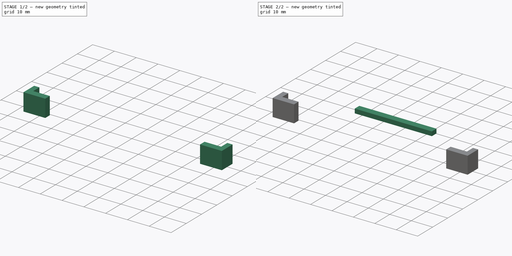
[diagram: build sequence overview — one tinted view per stage of 2, left to right]
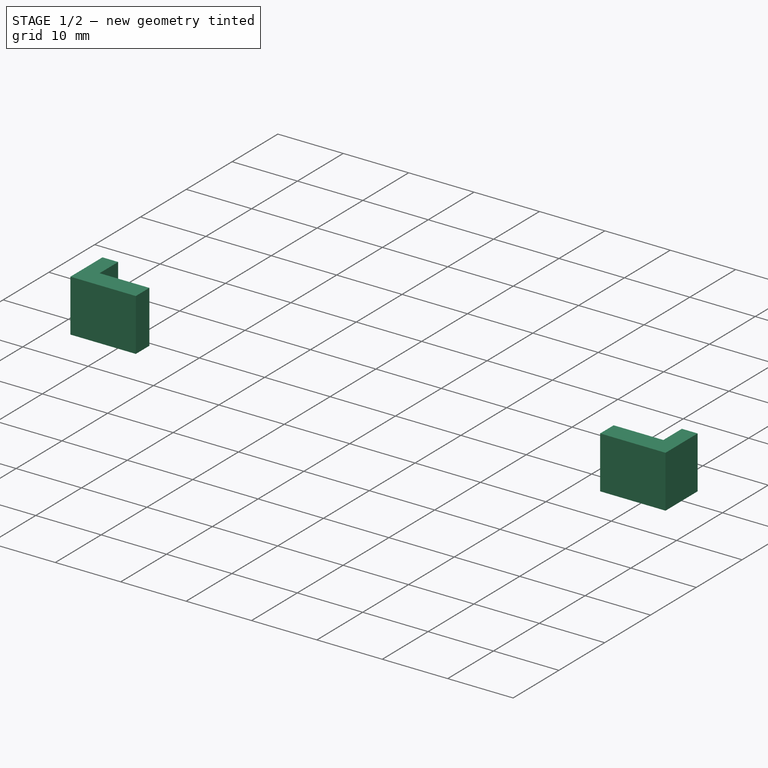
[diagram: stage 1 of 2 — iso view after this stage's code; geometry added in this stage tinted green]
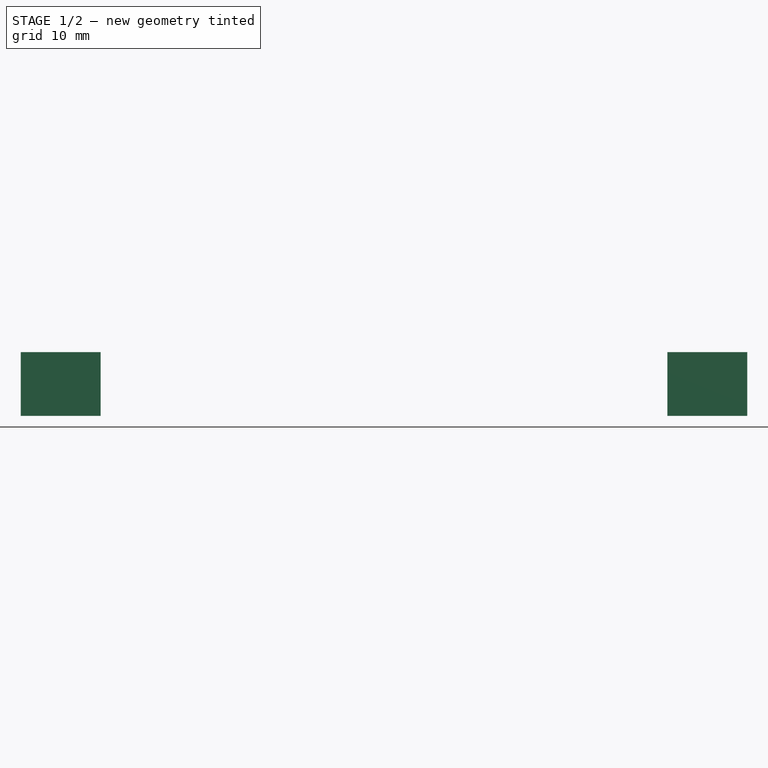
[diagram: stage 1 of 2 — front view after this stage's code; geometry added in this stage tinted green]
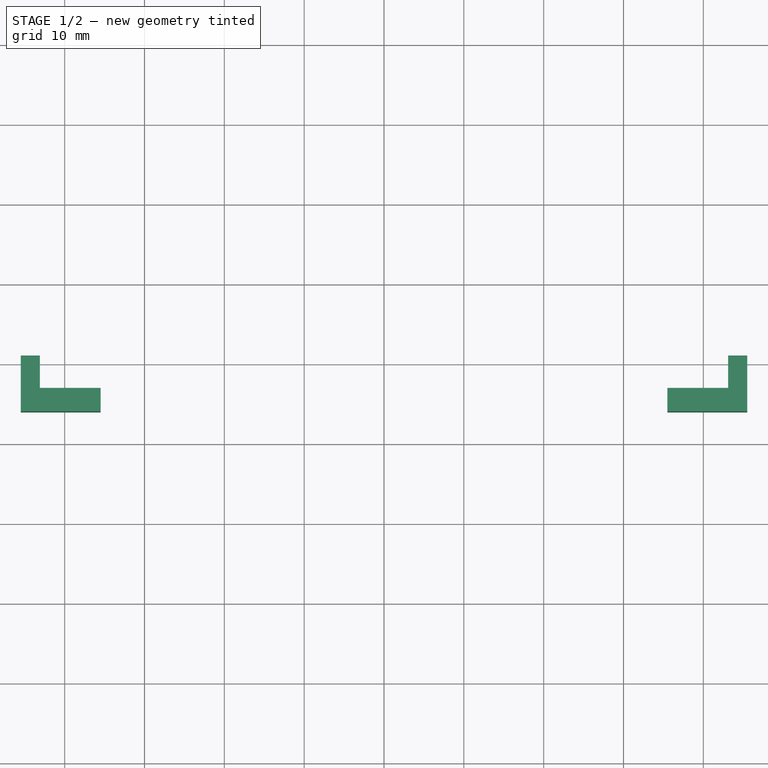
[diagram: stage 1 of 2 — top view after this stage's code; geometry added in this stage tinted green]
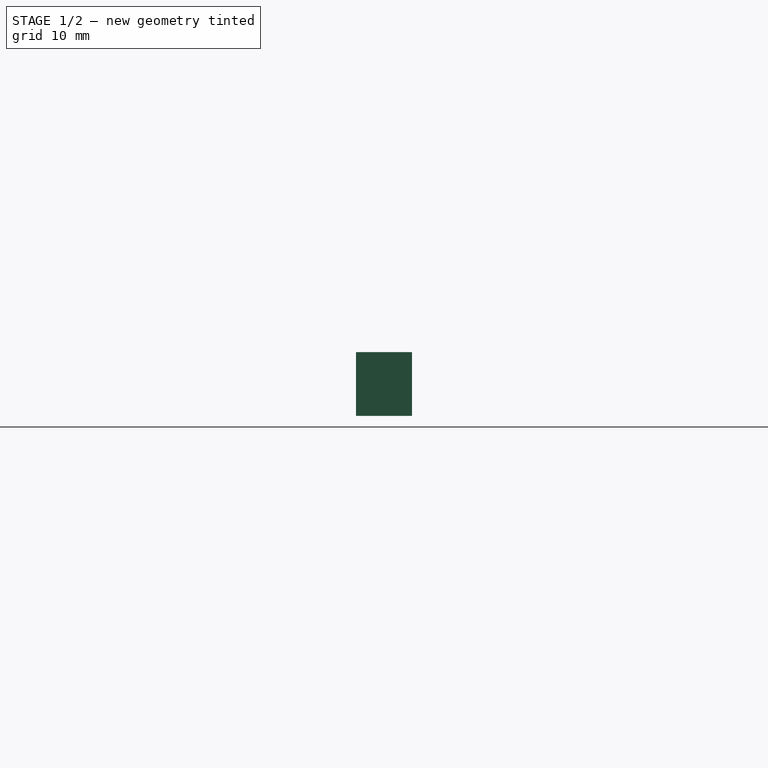
[diagram: stage 1 of 2 — right view after this stage's code; geometry added in this stage tinted green]
FCSTD DOCUMENT  (FreeCAD 0.18R15969 (Git))
Label: feature_positioning_lip
License: All rights reserved
LicenseURL: http://en.wikipedia.org/wiki/All_rights_reserved
objects: Sketcher::SketchObject×3, PartDesign::Pad×3, PartDesign::Body×3
note: 12 computed .brp shape members not serialized (recipe doc carries the construction recipe); baked Part::Feature solids carry a one-line shape summary decoded from their .brp

FEATURE [PartDesign::Body] Body  label="feature_positioning_lip_A"
  Group = -> [Sketch,Pad]
  Origin = -> Origin
  Tip = -> Pad
FEATURE [Sketcher::SketchObject] Sketch001
  MapMode = 5
  Support = -> [XY_Plane001]
  sketch-geometry (16):
    g0: LineSegment StartX=-45.5 StartY=-9 StartZ=0 EndX=-43.1 EndY=-9 EndZ=0
    g1: LineSegment StartX=-43.1 StartY=-9 StartZ=0 EndX=-43.1 EndY=-13.05 EndZ=0
    g2: LineSegment StartX=-43.1 StartY=-13.05 StartZ=0 EndX=-35.5 EndY=-13.05 EndZ=0
    g3: LineSegment StartX=-35.5 StartY=-13.05 StartZ=0 EndX=-35.5 EndY=-16 EndZ=0
    g4: LineSegment StartX=-35.5 StartY=-16 StartZ=0 EndX=-45.5 EndY=-16 EndZ=0
    g5: LineSegment StartX=-45.5 StartY=-16 StartZ=0 EndX=-45.5 EndY=-9 EndZ=0
    g6: LineSegment [constr] StartX=35.5 StartY=-13.05 StartZ=0 EndX=35.5 EndY=-16 EndZ=0
    g7: LineSegment [constr] StartX=35.5 StartY=-16 StartZ=0 EndX=45.5 EndY=-16 EndZ=0
    g8: LineSegment [constr] StartX=45.5 StartY=-16 StartZ=0 EndX=45.5 EndY=-9 EndZ=0
    g9: LineSegment [constr] StartX=45.5 StartY=-9 StartZ=0 EndX=43.1 EndY=-9 EndZ=0
    g10: LineSegment [constr] StartX=43.1 StartY=-9 StartZ=0 EndX=43.1 EndY=-13.05 EndZ=0
    g11: LineSegment [constr] StartX=43.1 StartY=-13.05 StartZ=0 EndX=35.5 EndY=-13.05 EndZ=0
    g12: LineSegment [constr] StartX=-35.5 StartY=-13.05 StartZ=0 EndX=0 EndY=-13.05 EndZ=0
    g13: LineSegment [constr] StartX=35.5 StartY=-13.05 StartZ=0 EndX=0 EndY=-13.05 EndZ=0
    g14: LineSegment [constr] StartX=-35.5 StartY=-13.05 StartZ=0 EndX=-35.5 EndY=0 EndZ=0
    g15: LineSegment [constr] StartX=35.5 StartY=-13.05 StartZ=0 EndX=35.5 EndY=0 EndZ=0
  constraints (47):
    c: Coincident(g0,g1)
    c: Vertical(g1)
    c: Coincident(g1,g2)
    c: Coincident(g2,g3)
    c: Vertical(g3)
    c: Coincident(g3,g4)
    c: Horizontal(g4)
    c: Coincident(g4,g5)
    c: Coincident(g5,g0)
    c: Vertical(g5)
    c: Horizontal(g0)
    c: Horizontal(g2)
    c: DistanceX(g0,g-1) = 43.1
    c: DistanceY(g1,g-1) = 13.05
    c: DistanceX(g0,g-1) = 45.5
    c: DistanceY(g3,g-1) = 16
    c: DistanceX(g2,g-1) = 35.5
    c: Coincident(g6,g7)
    c: Horizontal(g7)
    c: Coincident(g7,g8)
    c: Vertical(g8)
    c: Coincident(g8,g9)
    c: Coincident(g9,g10)
    c: Vertical(g10)
    c: Coincident(g10,g11)
    c: Coincident(g11,g6)
    c: Horizontal(g11)
    c: Vertical(g6)
    c: Equal(g3,g6)
    c: Equal(g10,g1)
    c: Equal(g5,g8)
    c: Equal(g7,g4)
    c: Equal(g11,g2)
    c: Coincident(g12,g2)
    c: PointOnObject(g12,g-2)
    c: Horizontal(g12)
    c: Coincident(g13,g6)
    c: Coincident(g13,g12)
    c: Horizontal(g13)
    c: Equal(g13,g12)
    c: Coincident(g14,g2)
    c: PointOnObject(g14,g-1)
    c: Vertical(g14)
    c: Coincident(g15,g6)
    c: Vertical(g15)
    c: Equal(g15,g14)
    c: DistanceY(g5,g5) = 7
FEATURE [PartDesign::Pad] Pad001
  Length = 8
  Length2 = 100
  Midplane = true
  Profile = -> Sketch001
  Type = 0
FEATURE [PartDesign::Body] Body001  label="feature_positioning_lip_B"
  Group = -> [Sketch001,Pad001]
  Origin = -> Origin001
  Tip = -> Pad001
FEATURE [Sketcher::SketchObject] Sketch002
  MapMode = 5
  Support = -> [XY_Plane002]
  sketch-geometry (16):
    g0: LineSegment [constr] StartX=-45.5 StartY=-9 StartZ=0 EndX=-43.1 EndY=-9 EndZ=0
    g1: LineSegment [constr] StartX=-43.1 StartY=-9 StartZ=0 EndX=-43.1 EndY=-13.05 EndZ=0
    g2: LineSegment [constr] StartX=-43.1 StartY=-13.05 StartZ=0 EndX=-35.5 EndY=-13.05 EndZ=0
    g3: LineSegment [constr] StartX=-35.5 StartY=-13.05 StartZ=0 EndX=-35.5 EndY=-16 EndZ=0
    g4: LineSegment [constr] StartX=-35.5 StartY=-16 StartZ=0 EndX=-45.5 EndY=-16 EndZ=0
    g5: LineSegment [constr] StartX=-45.5 StartY=-16 StartZ=0 EndX=-45.5 EndY=-9 EndZ=0
    g6: LineSegment StartX=35.5 StartY=-13.05 StartZ=0 EndX=35.5 EndY=-16 EndZ=0
    g7: LineSegment StartX=35.5 StartY=-16 StartZ=0 EndX=45.5 EndY=-16 EndZ=0
    g8: LineSegment StartX=45.5 StartY=-16 StartZ=0 EndX=45.5 EndY=-9 EndZ=0
    g9: LineSegment StartX=45.5 StartY=-9 StartZ=0 EndX=43.1 EndY=-9 EndZ=0
    g10: LineSegment StartX=43.1 StartY=-9 StartZ=0 EndX=43.1 EndY=-13.05 EndZ=0
    g11: LineSegment StartX=43.1 StartY=-13.05 StartZ=0 EndX=35.5 EndY=-13.05 EndZ=0
    g12: LineSegment [constr] StartX=-35.5 StartY=-13.05 StartZ=0 EndX=0 EndY=-13.05 EndZ=0
    g13: LineSegment [constr] StartX=35.5 StartY=-13.05 StartZ=0 EndX=0 EndY=-13.05 EndZ=0
    g14: LineSegment [constr] StartX=-35.5 StartY=-13.05 StartZ=0 EndX=-35.5 EndY=0 EndZ=0
    g15: LineSegment [constr] StartX=35.5 StartY=-13.05 StartZ=0 EndX=35.5 EndY=0 EndZ=0
  constraints (47):
    c: Coincident(g0,g1)
    c: Vertical(g1)
    c: Coincident(g1,g2)
    c: Coincident(g2,g3)
    c: Vertical(g3)
    c: Coincident(g3,g4)
    c: Horizontal(g4)
    c: Coincident(g4,g5)
    c: Coincident(g5,g0)
    c: Vertical(g5)
    c: Horizontal(g0)
    c: Horizontal(g2)
    c: DistanceX(g0,g-1) = 43.1
    c: DistanceY(g1,g-1) = 13.05
    c: DistanceX(g0,g-1) = 45.5
    c: DistanceY(g3,g-1) = 16
    c: DistanceX(g2,g-1) = 35.5
    c: Coincident(g6,g7)
    c: Horizontal(g7)
    c: Coincident(g7,g8)
    c: Vertical(g8)
    c: Coincident(g8,g9)
    c: Coincident(g9,g10)
    c: Vertical(g10)
    c: Coincident(g10,g11)
    c: Coincident(g11,g6)
    c: Horizontal(g11)
    c: Vertical(g6)
    c: Equal(g3,g6)
    c: Equal(g10,g1)
    c: Equal(g5,g8)
    c: Equal(g7,g4)
    c: Equal(g11,g2)
    c: Coincident(g12,g2)
    c: PointOnObject(g12,g-2)
    c: Horizontal(g12)
    c: Coincident(g13,g6)
    c: Coincident(g13,g12)
    c: Horizontal(g13)
    c: Equal(g13,g12)
    c: Coincident(g14,g2)
    c: PointOnObject(g14,g-1)
    c: Vertical(g14)
    c: Coincident(g15,g6)
    c: Vertical(g15)
    c: Equal(g15,g14)
    c: DistanceY(g5,g5) = 7
FEATURE [PartDesign::Pad] Pad002
  Length = 8
  Length2 = 100
  Midplane = true
  Profile = -> Sketch002
  Type = 0
FEATURE [PartDesign::Body] Body002  label="feature_positioning_lip_C"
  Group = -> [Sketch002,Pad002]
  Origin = -> Origin002
  Tip = -> Pad002
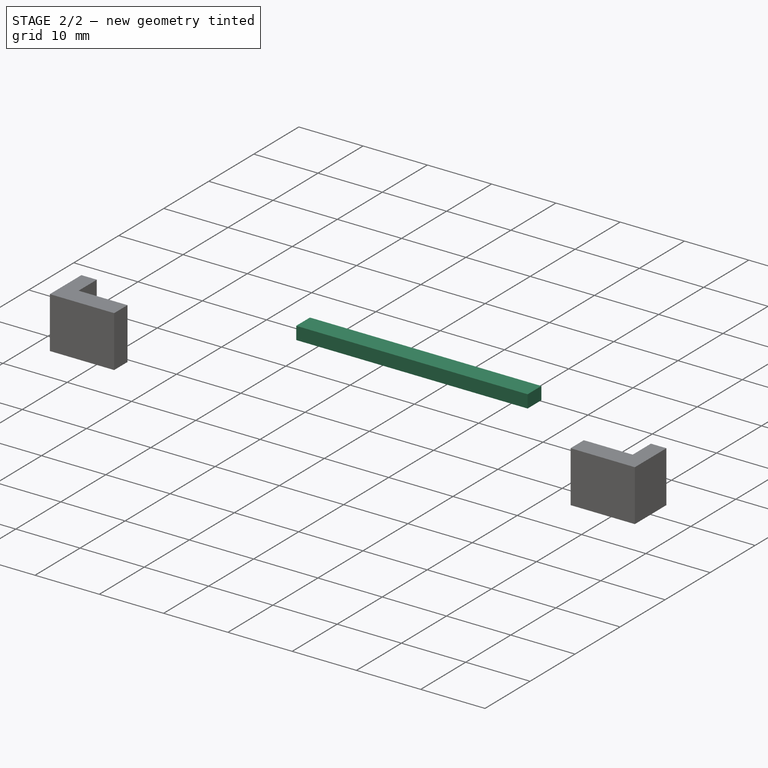
[diagram: stage 2 of 2 — iso view after this stage's code; geometry added in this stage tinted green]
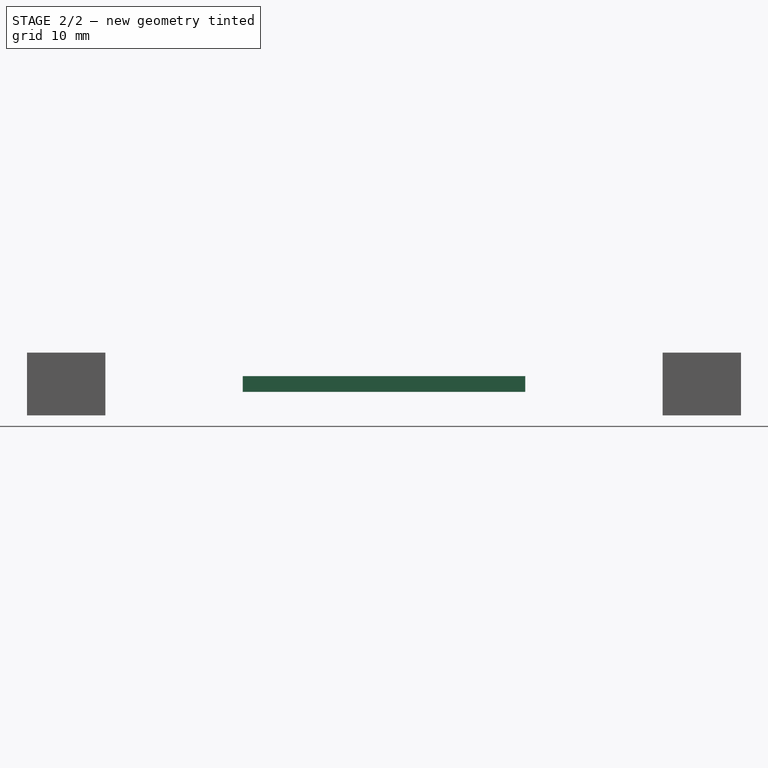
[diagram: stage 2 of 2 — front view after this stage's code; geometry added in this stage tinted green]
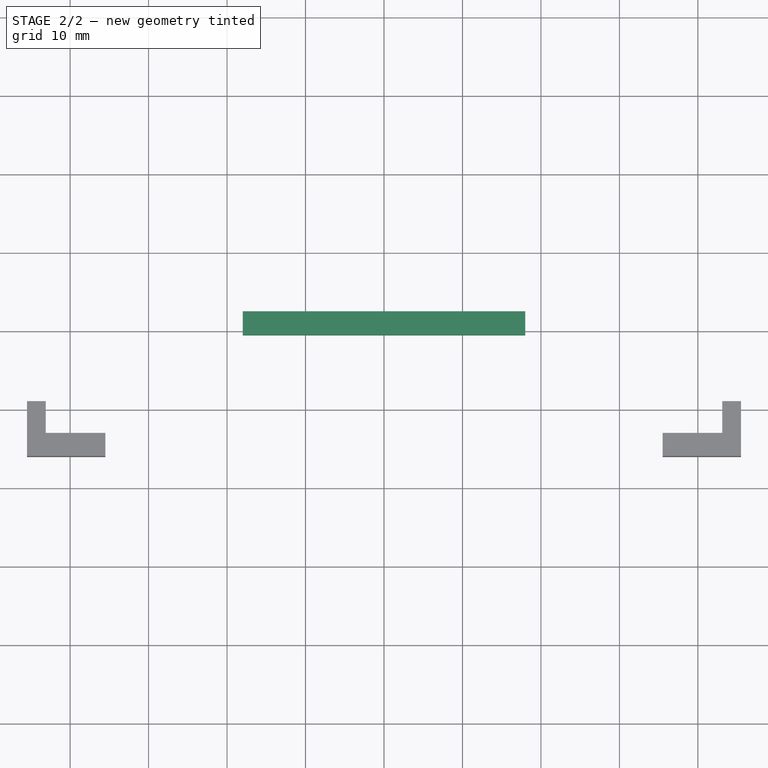
[diagram: stage 2 of 2 — top view after this stage's code; geometry added in this stage tinted green]
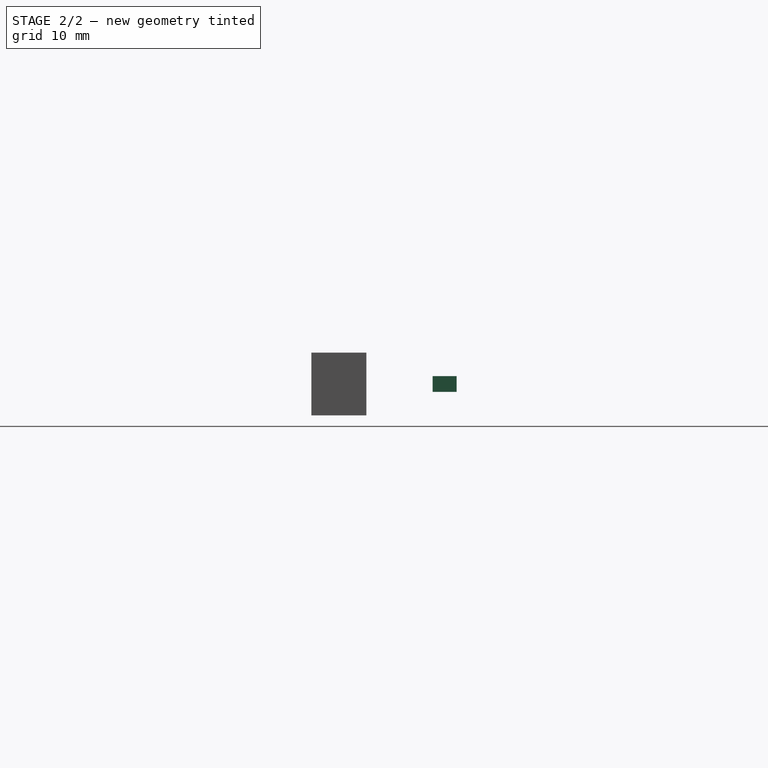
[diagram: stage 2 of 2 — right view after this stage's code; geometry added in this stage tinted green]
FEATURE [Sketcher::SketchObject] Sketch
  MapMode = 5
  Support = -> [XY_Plane]
  sketch-geometry (7):
    g0: LineSegment StartX=-18 StartY=2.5 StartZ=0 EndX=18 EndY=2.5 EndZ=0
    g1: LineSegment StartX=18 StartY=2.5 StartZ=0 EndX=18 EndY=-0.55 EndZ=0
    g2: LineSegment StartX=18 StartY=-0.55 StartZ=0 EndX=-18 EndY=-0.55 EndZ=0
    g3: LineSegment StartX=-18 StartY=-0.55 StartZ=0 EndX=-18 EndY=2.5 EndZ=0
    g4: LineSegment [constr] StartX=-18 StartY=2.5 StartZ=0 EndX=0 EndY=0.975 EndZ=0
    g5: LineSegment [constr] StartX=0 StartY=0.975 StartZ=0 EndX=-18 EndY=-0.55 EndZ=0
    g6: LineSegment [constr] StartX=0 StartY=0.975 StartZ=0 EndX=18 EndY=2.5 EndZ=0
  constraints (19):
    c: Coincident(g0,g1)
    c: Coincident(g1,g2)
    c: Coincident(g2,g3)
    c: Coincident(g3,g0)
    c: Horizontal(g0)
    c: Horizontal(g2)
    c: Vertical(g1)
    c: Vertical(g3)
    c: Coincident(g0,g4)
    c: PointOnObject(g4,g-2)
    c: Coincident(g4,g5)
    c: Coincident(g5,g2)
    c: Coincident(g4,g6)
    c: Coincident(g6,g0)
    c: Equal(g6,g4)
    c: Equal(g4,g5)
    c: DistanceY(g-1,g0) = 2.5
    c: DistanceX(g0,g0) = 36
    c: DistanceY(g1,g-1) = 0.55
FEATURE [PartDesign::Pad] Pad
  Length = 2
  Length2 = 100
  Midplane = true
  Profile = -> Sketch
  Type = 0
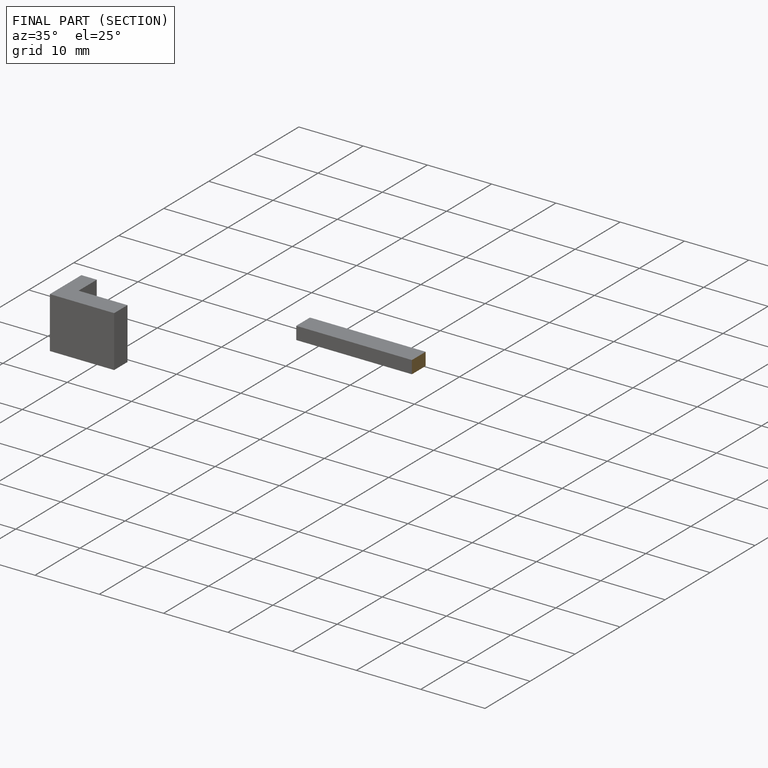
[diagram: finished part — half-section view (interior)]
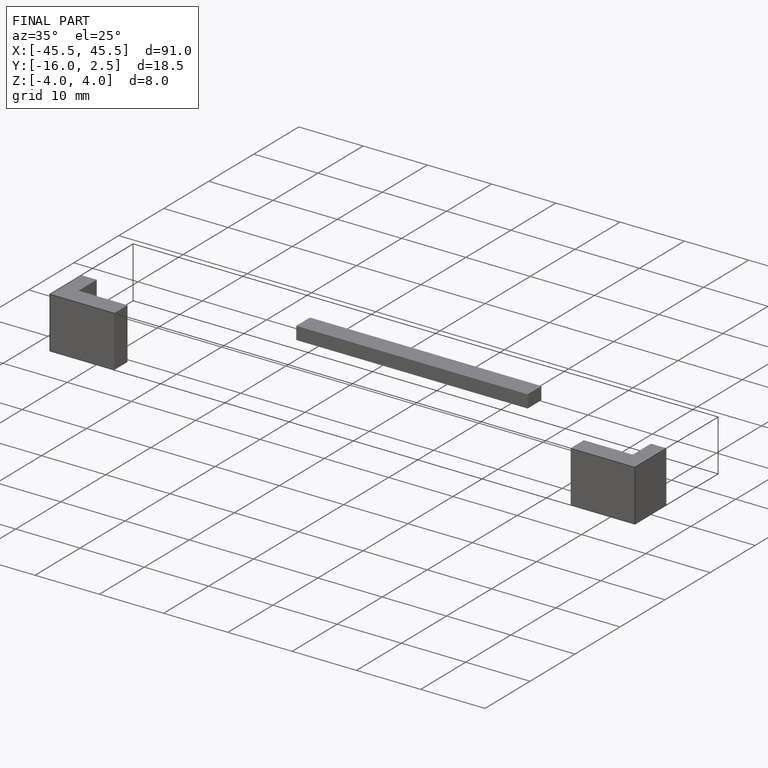
[diagram: finished part — iso view with bounding-box wireframe]
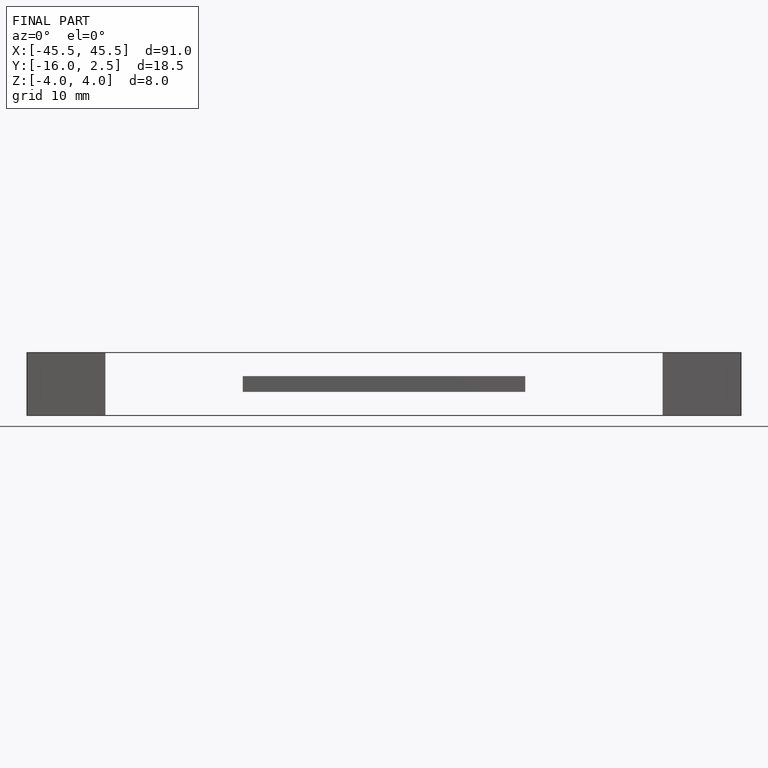
[diagram: finished part — front view with bounding-box wireframe]
